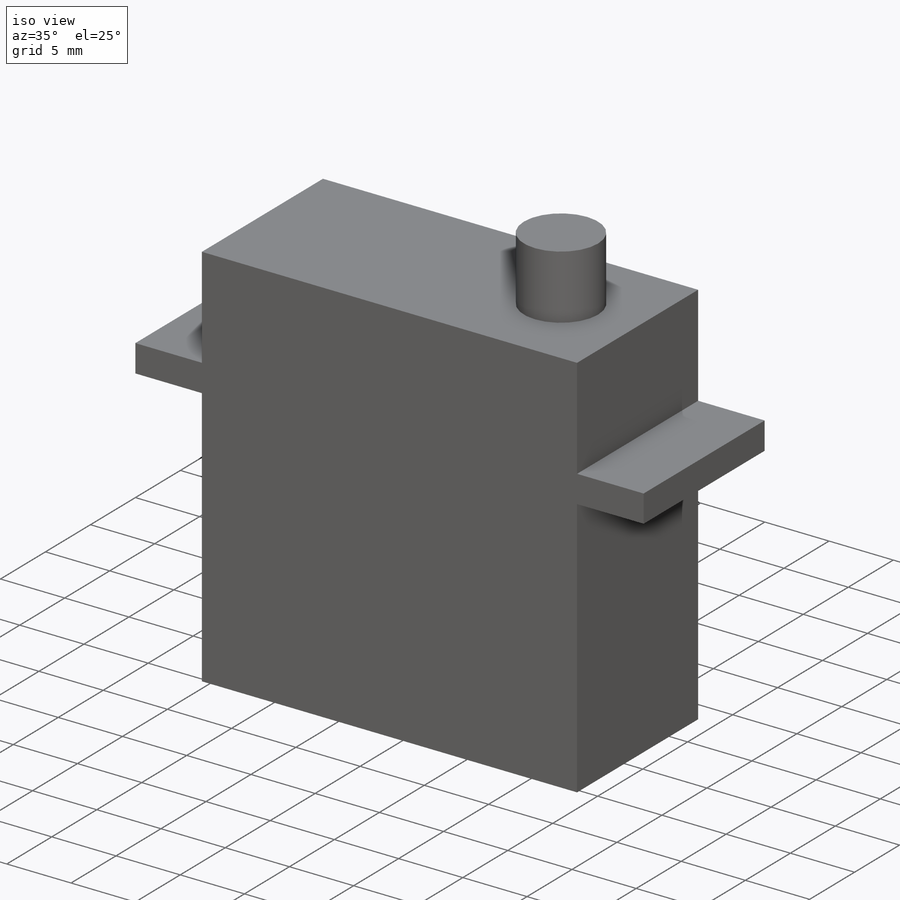
[diagram: iso view]
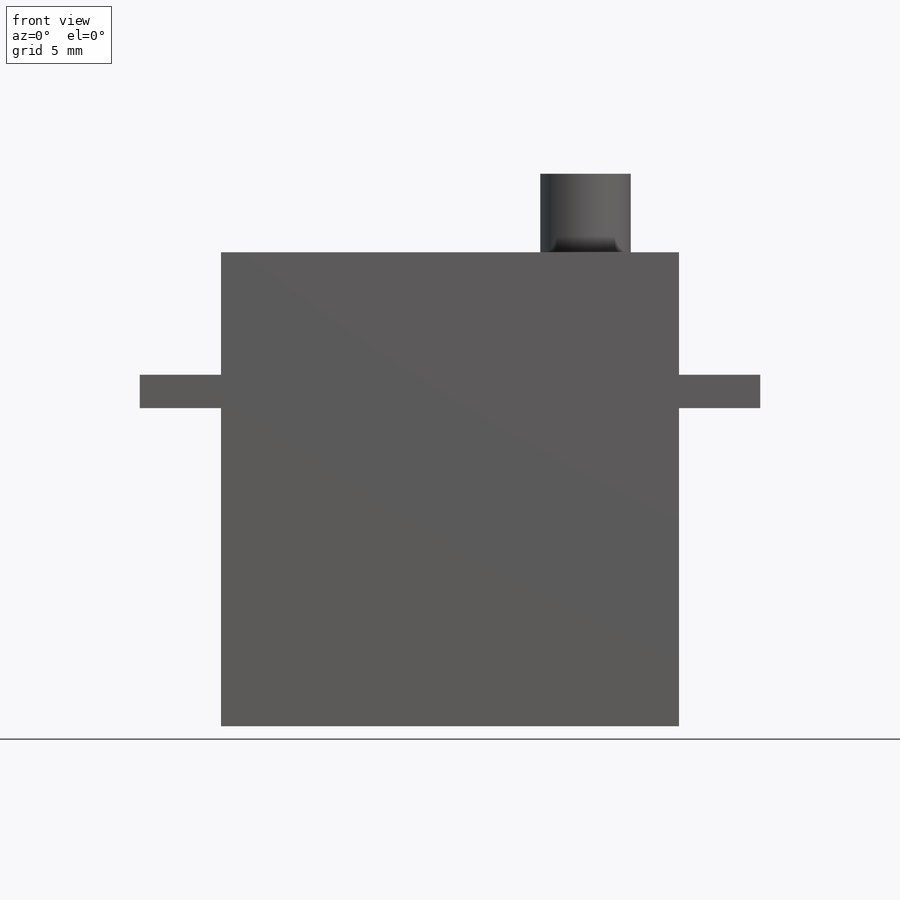
[diagram: front view]
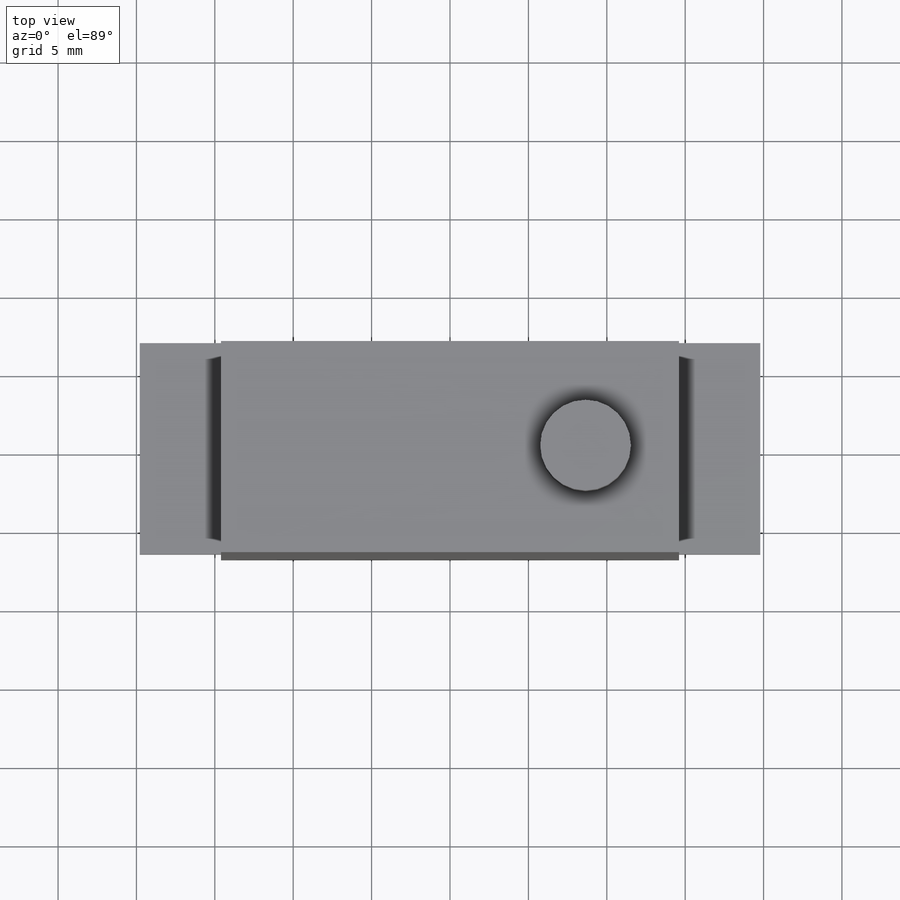
[diagram: top view]
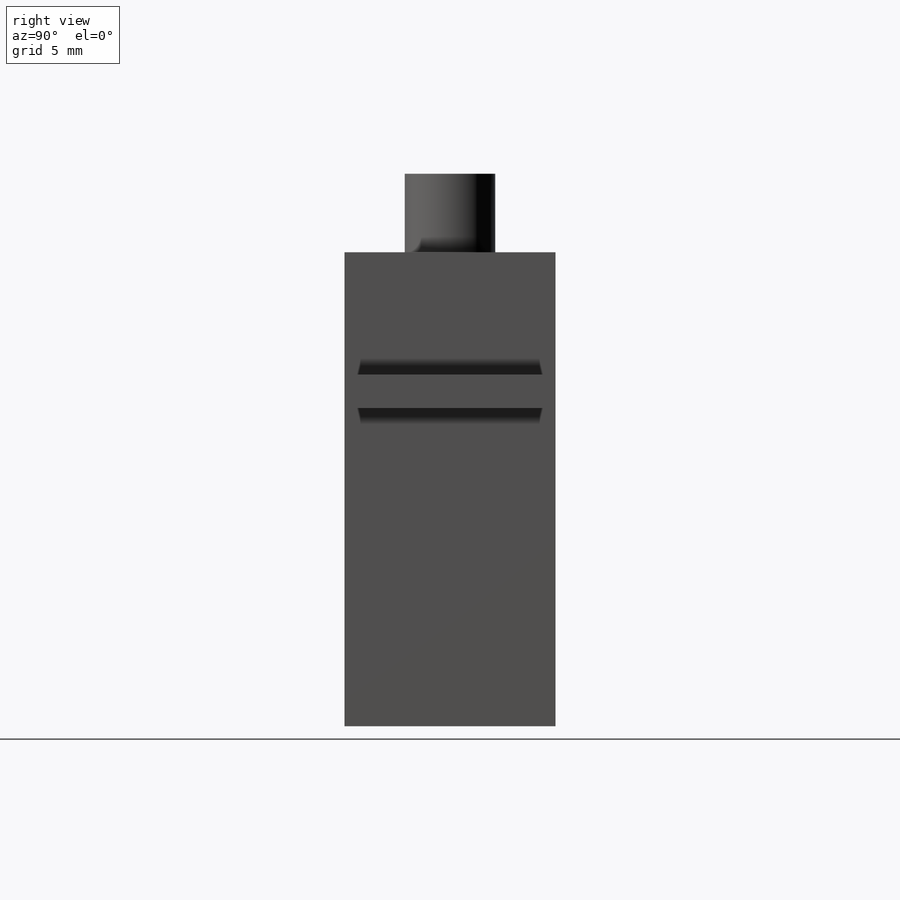
[diagram: right view]
SOLIDWORKS PART (.sldprt)
format: sldprt  version: not decoded by parser v0  size: 143,872 bytes
history: native  units: mm
features: sketch x3, extrude x3, material x1, mirror x1 (+12 scaffold rows collapsed)
feature tree (20):
  scaffold x12  (default folders/planes/origin — collapsed)
  material  "Material <not specified>"
  sketch  "Sketch1"  dims[D1=29.21mm D2=30.226mm]
  extrude  "Boss-Extrude1"  Depth=13.462mm
  sketch  "Sketch2"  dims[D1=20.2819mm D2=2.1336mm D3=39.5732mm]
  extrude  "Boss-Extrude2"  [1 undecoded]
  mirror  "Mirror1"
  sketch  "Sketch3"  dims[D1=5.7785mm D2=3.0734mm]
  extrude  "Boss-Extrude3"  Depth=5.0038mm
decode coverage: 5 of 7 modeling features carry decoded parameters
note: 1 parameter value undecoded
note: suppression state not decoded; provenance and decode notes live in map.json
